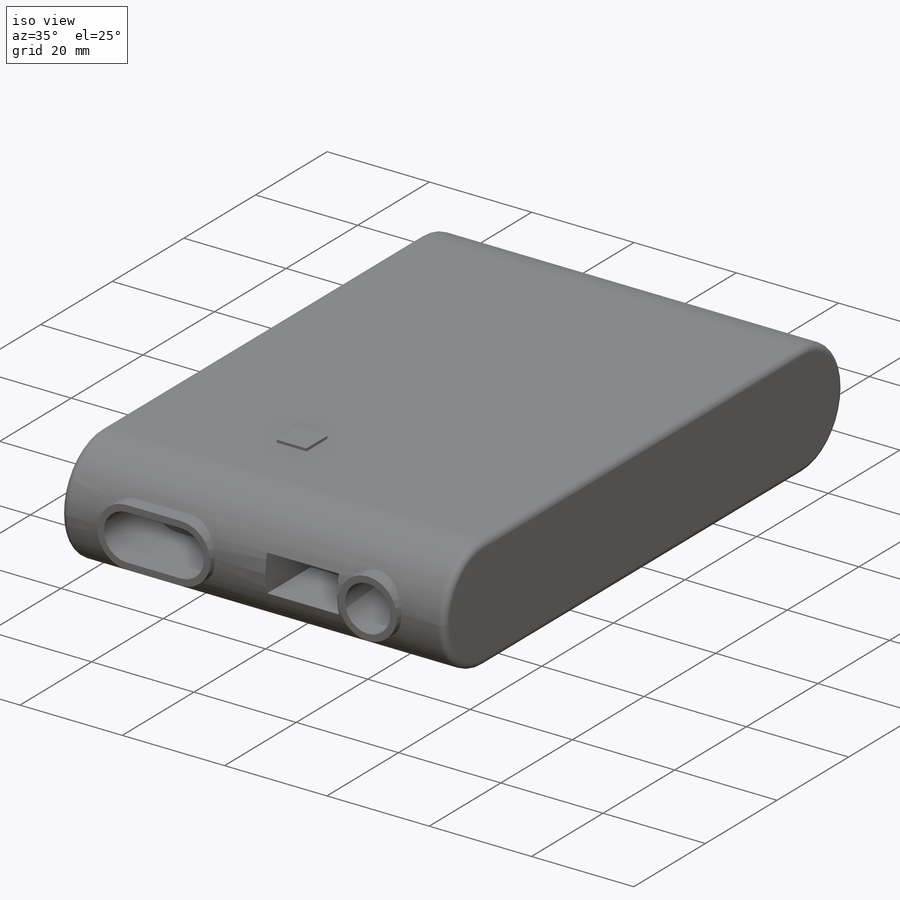
[diagram: iso view]
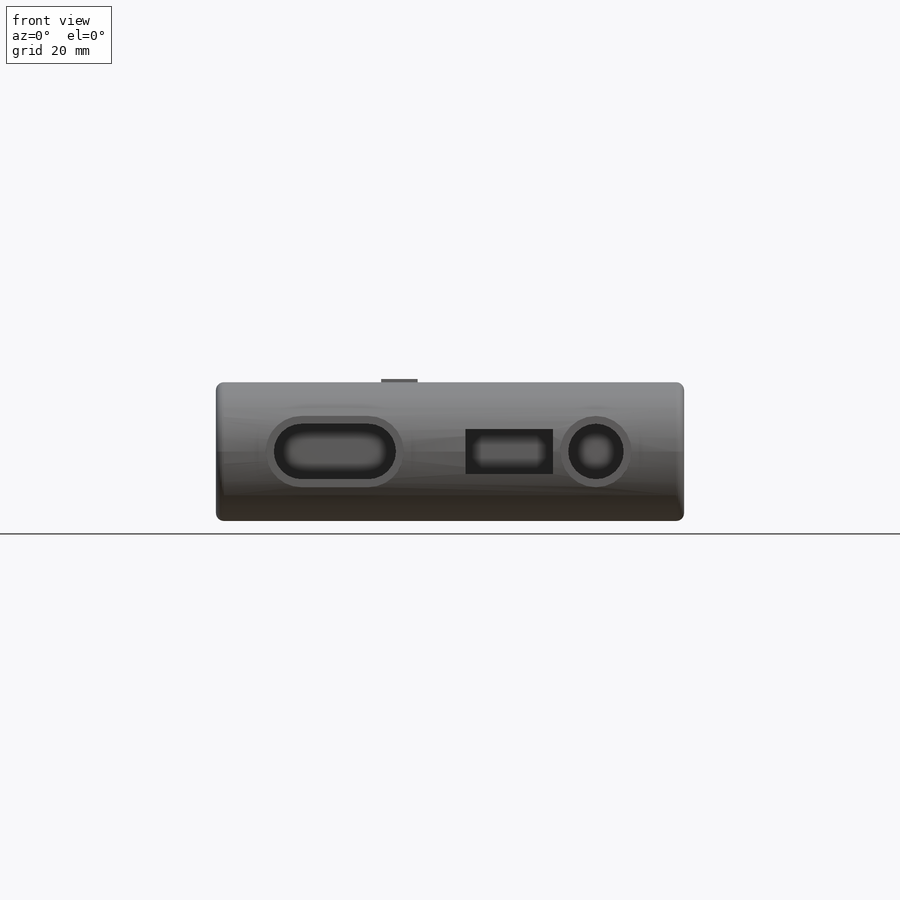
[diagram: front view]
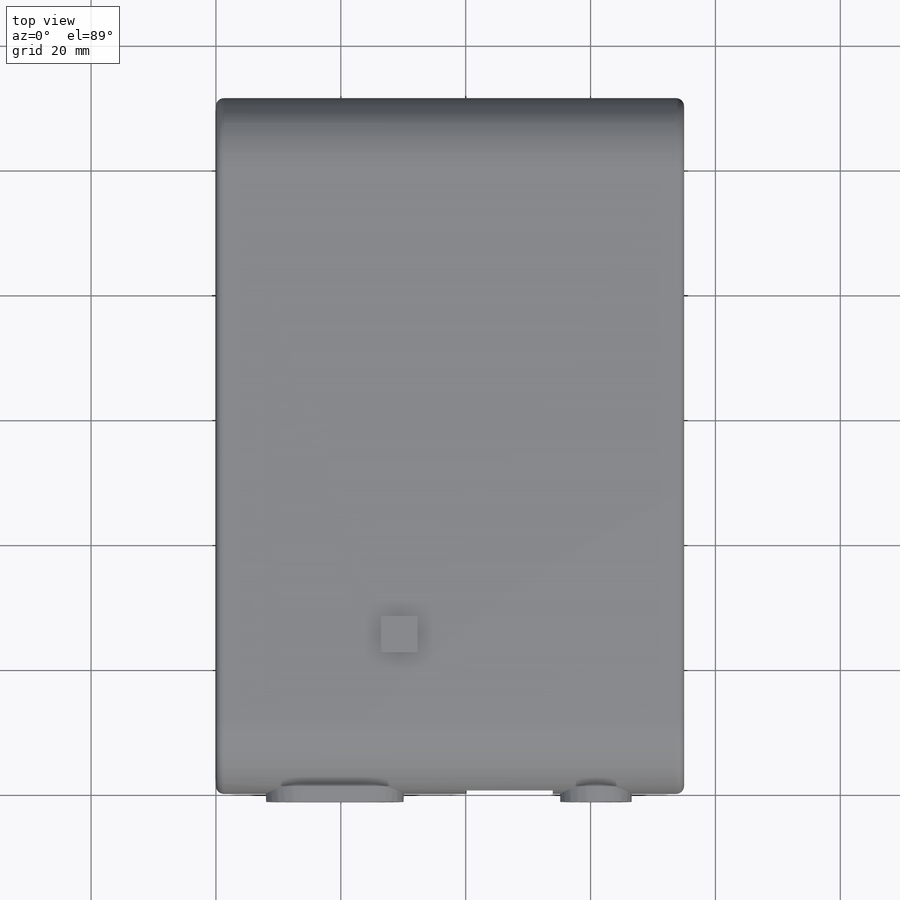
[diagram: top view]
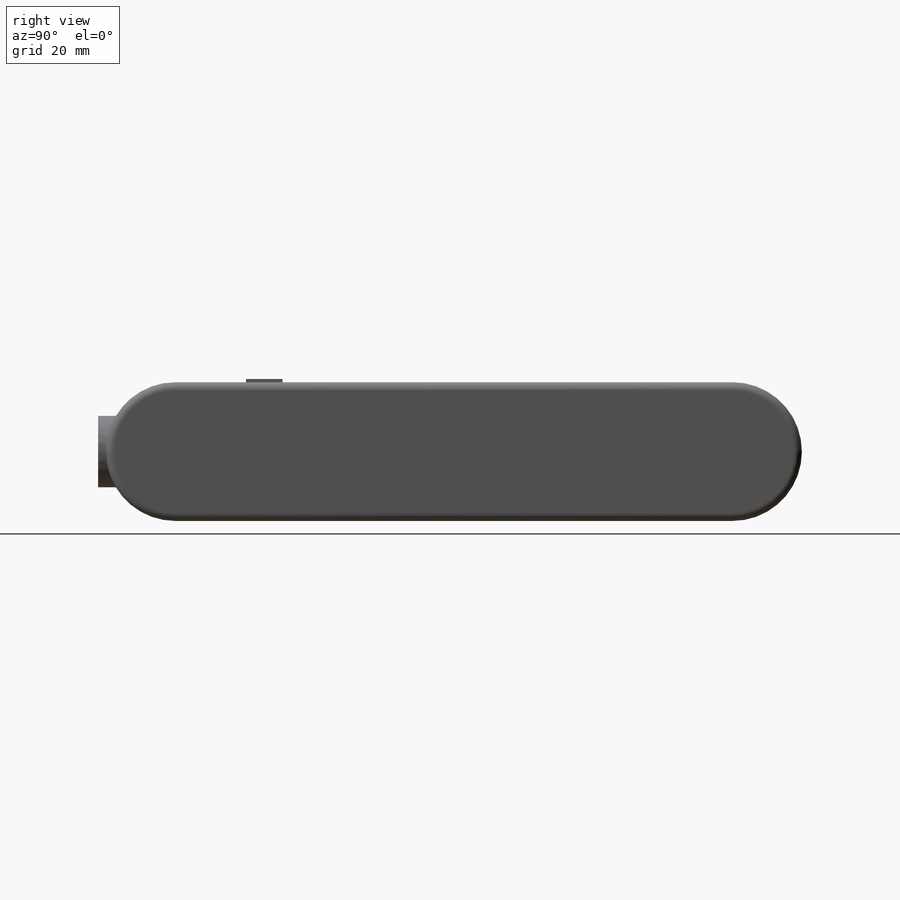
[diagram: right view]
SOLIDWORKS PART (.sldprt)
format: sldprt  version: not decoded by parser v0  size: 287,232 bytes
history: native  units: mm
features: sketch x4, extrude x2, fillet x2, material x1, cut_extrude x1 (+13 scaffold rows collapsed)
feature tree (23):
  scaffold x13  (default folders/planes/origin — collapsed)
  material  "Material <not specified>"
  sketch  "Sketch1"  dims[D1=111.4552mm D2=74.9808mm]
  extrude  "Boss-Extrude1"  Depth=22.225mm
  fillet  "Fillet1"  Radius=11.1125mm
  fillet  "Fillet2"  Radius=1.27mm
  sketch  "Sketch2"  dims[c1.D1=8.89mm c1.D2=4.445mm c1.D3=10.668mm c1.D4=14.0208mm c1.D5=7.1882mm c1.D6=14.1224mm c1.D7=6.9088mm c1.D8=13.716mm c2.D1=1.27mm c2.D5=1.27mm c2.D6=1.0mm c2.D7=5.0mm]
  cut_extrude  "Cut-Extrude1"  [1 undecoded]
  sketch  "Sketch2<3>"  dims[D1=12.7mm]
  sketch  "Sketch3"  dims[c1.D1=5.842mm c1.D2=41.402mm c1.D3=11.303mm c2.D2=41.402mm]
  extrude  "Boss-Extrude2"  Depth=0.508mm
decode coverage: 8 of 9 modeling features carry decoded parameters
note: 1 parameter value undecoded
note: suppression state not decoded; provenance and decode notes live in map.json
